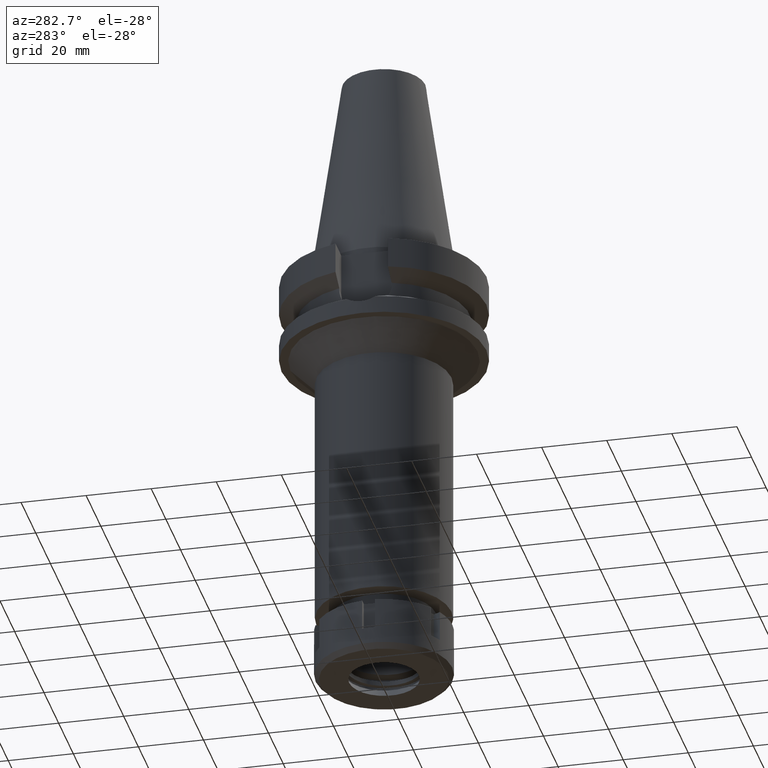
[diagram: clean part render]
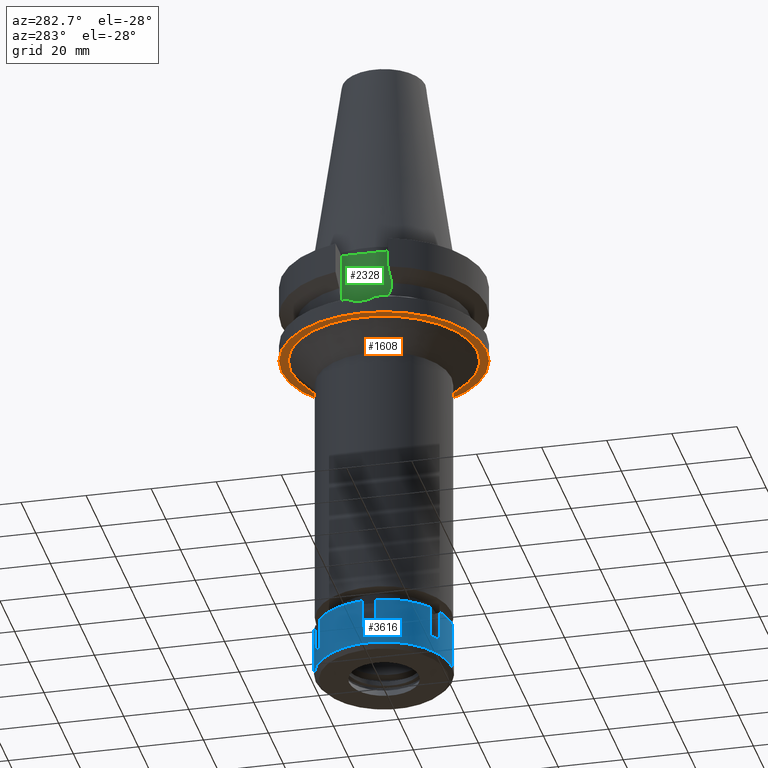
[diagram: same view with three faces highlighted in distinct colors, each labeled with its STEP entity id]
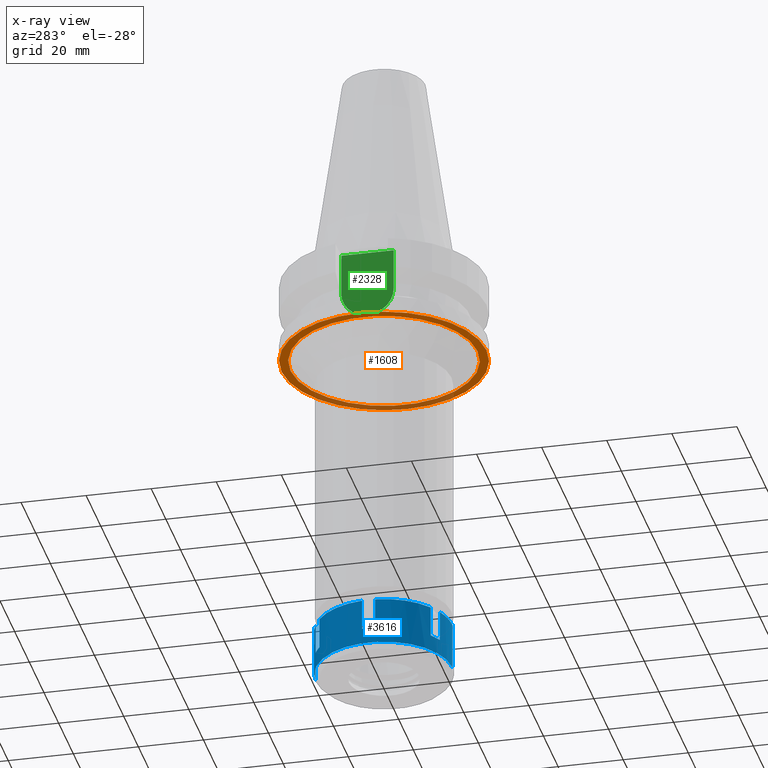
[diagram: x-ray of the same camera — body ghosted, the three highlighted faces saturated]
A machine part, auxiliary view with three faces highlighted in distinct colors.
The next image is the same camera in x-ray (body ghosted, the three faces saturated) — at least one of them is partly hidden behind the body in this view.
Their STEP definitions:

[orange] entity #1608 — the highlighted planar face has unit normal (0, 0, -1).
#24 = CARTESIAN_POINT ( 'NONE',  ( 0.0000000000000000000, 2.143376827867999896E-14, -27.00000000000000000 ) ) ;
#64 = CARTESIAN_POINT ( 'NONE',  ( 0.0000000000000000000, 0.0000000000000000000, -27.00000000000000000 ) ) ;
#93 = DIRECTION ( 'NONE',  ( 0.0000000000000000000, 0.0000000000000000000, -1.000000000000000000 ) ) ;
#149 = VERTEX_POINT ( 'NONE', #1038 ) ;
#159 = CIRCLE ( 'NONE', #1456, 31.50000000000000000 ) ;
#274 = DIRECTION ( 'NONE',  ( 0.0000000000000000000, -1.000000000000000000, 0.0000000000000000000 ) ) ;
#646 = VERTEX_POINT ( 'NONE', #1660 ) ;
#872 = DIRECTION ( 'NONE',  ( 0.0000000000000000000, 0.0000000000000000000, 1.000000000000000000 ) ) ;
#937 = FACE_OUTER_BOUND ( 'NONE', #2844, .T. ) ;
#969 = ORIENTED_EDGE ( 'NONE', *, *, #2391, .F. ) ;
#1000 = CIRCLE ( 'NONE', #1173, 28.75000000000000000 ) ;
#1038 = CARTESIAN_POINT ( 'NONE',  ( 0.0000000000000000000, 28.75000000000000000, -27.00000000000000000 ) ) ;
#1084 = ORIENTED_EDGE ( 'NONE', *, *, #1457, .F. ) ;
#1173 = AXIS2_PLACEMENT_3D ( 'NONE', #3445, #93, #1196 ) ;
#1196 = DIRECTION ( 'NONE',  ( 0.0000000000000000000, -1.000000000000000000, 0.0000000000000000000 ) ) ;
#1199 = DIRECTION ( 'NONE',  ( 0.0000000000000000000, 0.0000000000000000000, -1.000000000000000000 ) ) ;
#1368 = DIRECTION ( 'NONE',  ( 0.0000000000000000000, 0.0000000000000000000, -1.000000000000000000 ) ) ;
#1411 = DIRECTION ( 'NONE',  ( 0.0000000000000000000, 1.000000000000000000, 0.0000000000000000000 ) ) ;
#1422 = CARTESIAN_POINT ( 'NONE',  ( 0.0000000000000000000, 31.50000000000000000, -27.00000000000000000 ) ) ;
#1456 = AXIS2_PLACEMENT_3D ( 'NONE', #24, #872, #274 ) ;
#1457 = EDGE_CURVE ( 'NONE', #149, #646, #3056, .T. ) ;
#1468 = AXIS2_PLACEMENT_3D ( 'NONE', #2281, #1368, #2784 ) ;
#1501 = FACE_BOUND ( 'NONE', #3070, .T. ) ;
#1608 = ADVANCED_FACE ( 'NONE', ( #937, #1501 ), #1808, .T. ) ;
#1660 = CARTESIAN_POINT ( 'NONE',  ( 0.0000000000000000000, -28.75000000000000000, -27.00000000000000000 ) ) ;
#1808 = PLANE ( 'NONE',  #3455 ) ;
#2047 = EDGE_CURVE ( 'NONE', #646, #149, #1000, .T. ) ;
#2213 = CARTESIAN_POINT ( 'NONE',  ( 0.0000000000000000000, -31.50000000000000000, -27.00000000000000000 ) ) ;
#2281 = CARTESIAN_POINT ( 'NONE',  ( 0.0000000000000000000, 0.0000000000000000000, -27.00000000000000000 ) ) ;
#2391 = EDGE_CURVE ( 'NONE', #3151, #3040, #3340, .T. ) ;
#2616 = ORIENTED_EDGE ( 'NONE', *, *, #3429, .F. ) ;
#2647 = ORIENTED_EDGE ( 'NONE', *, *, #2047, .F. ) ;
#2777 = DIRECTION ( 'NONE',  ( 0.0000000000000000000, 0.0000000000000000000, 1.000000000000000000 ) ) ;
#2784 = DIRECTION ( 'NONE',  ( 0.0000000000000000000, 1.000000000000000000, 0.0000000000000000000 ) ) ;
#2844 = EDGE_LOOP ( 'NONE', ( #969, #2616 ) ) ;
#2884 = DIRECTION ( 'NONE',  ( 0.0000000000000000000, -1.000000000000000000, 0.0000000000000000000 ) ) ;
#3040 = VERTEX_POINT ( 'NONE', #2213 ) ;
#3041 = CARTESIAN_POINT ( 'NONE',  ( 0.0000000000000000000, 2.143376827867999896E-14, -27.00000000000000000 ) ) ;
#3056 = CIRCLE ( 'NONE', #1468, 28.75000000000000000 ) ;
#3070 = EDGE_LOOP ( 'NONE', ( #1084, #2647 ) ) ;
#3151 = VERTEX_POINT ( 'NONE', #1422 ) ;
#3340 = CIRCLE ( 'NONE', #3511, 31.50000000000000000 ) ;
#3429 = EDGE_CURVE ( 'NONE', #3040, #3151, #159, .T. ) ;
#3445 = CARTESIAN_POINT ( 'NONE',  ( 0.0000000000000000000, 0.0000000000000000000, -27.00000000000000000 ) ) ;
#3455 = AXIS2_PLACEMENT_3D ( 'NONE', #64, #1199, #2884 ) ;
#3511 = AXIS2_PLACEMENT_3D ( 'NONE', #3041, #2777, #1411 ) ;

[blue] entity #3616 — the highlighted cylindrical surface (partial cylindrical patch) has radius 21 mm, axis along (0, 0, -1).
#43 = EDGE_CURVE ( 'NONE', #3589, #1477, #738, .T. ) ;
#70 = EDGE_CURVE ( 'NONE', #2949, #2815, #2122, .T. ) ;
#72 = CARTESIAN_POINT ( 'NONE',  ( -12.18432328774999895, 17.10386699022999935, 0.0000000000000000000 ) ) ;
#73 = LINE ( 'NONE', #2910, #2234 ) ;
#102 = CARTESIAN_POINT ( 'NONE',  ( 0.0000000000000000000, -21.00000000000000000, 0.0000000000000000000 ) ) ;
#138 = DIRECTION ( 'NONE',  ( 0.0000000000000000000, 0.0000000000000000000, -1.000000000000000000 ) ) ;
#144 = CARTESIAN_POINT ( 'NONE',  ( 0.0000000000000000000, 0.0000000000000000000, -9.500000000000000000 ) ) ;
#150 = LINE ( 'NONE', #2403, #422 ) ;
#158 = DIRECTION ( 'NONE',  ( -0.5802058708453158298, 0.8144698566777217597, 0.0000000000000000000 ) ) ;
#166 = AXIS2_PLACEMENT_3D ( 'NONE', #3043, #245, #1566 ) ;
#185 = FACE_OUTER_BOUND ( 'NONE', #1439, .T. ) ;
#245 = DIRECTION ( 'NONE',  ( 0.0000000000000000000, 0.0000000000000000000, -1.000000000000000000 ) ) ;
#264 = DIRECTION ( 'NONE',  ( -0.9954545219222313834, 0.09523809523810303213, 0.0000000000000000000 ) ) ;
#275 = CARTESIAN_POINT ( 'NONE',  ( -8.720221672615000585, 19.10386699022999935, 0.0000000000000000000 ) ) ;
#330 = CARTESIAN_POINT ( 'NONE',  ( -8.720221672615998898, -19.10386699022999935, 0.0000000000000000000 ) ) ;
#398 = EDGE_CURVE ( 'NONE', #3247, #483, #2627, .T. ) ;
#410 = CIRCLE ( 'NONE', #3284, 20.99999999999999289 ) ;
#412 = DIRECTION ( 'NONE',  ( 0.0000000000000000000, 0.0000000000000000000, -1.000000000000000000 ) ) ;
#422 = VECTOR ( 'NONE', #3257, 1000.000000000000000 ) ;
#454 = DIRECTION ( 'NONE',  ( 0.0000000000000000000, 0.0000000000000000000, -1.000000000000000000 ) ) ;
#456 = DIRECTION ( 'NONE',  ( -0.9954545219222313834, -0.09523809523810303213, 0.0000000000000000000 ) ) ;
#479 = CIRCLE ( 'NONE', #1243, 20.99999999999999289 ) ;
#483 = VERTEX_POINT ( 'NONE', #72 ) ;
#501 = CYLINDRICAL_SURFACE ( 'NONE', #529, 21.00000000000000000 ) ;
#529 = AXIS2_PLACEMENT_3D ( 'NONE', #3010, #2721, #2734 ) ;
#543 = ORIENTED_EDGE ( 'NONE', *, *, #2882, .F. ) ;
#562 = EDGE_CURVE ( 'NONE', #2748, #1606, #479, .T. ) ;
#578 = EDGE_CURVE ( 'NONE', #2651, #1477, #1001, .T. ) ;
#682 = ORIENTED_EDGE ( 'NONE', *, *, #2322, .F. ) ;
#692 = CARTESIAN_POINT ( 'NONE',  ( -20.90454496036999998, 2.000000000000000000, -9.500000000000000000 ) ) ;
#711 = ORIENTED_EDGE ( 'NONE', *, *, #1035, .T. ) ;
#738 = LINE ( 'NONE', #1931, #2405 ) ;
#739 = DIRECTION ( 'NONE',  ( 0.0000000000000000000, 0.0000000000000000000, -1.000000000000000000 ) ) ;
#776 = CARTESIAN_POINT ( 'NONE',  ( 0.0000000000000000000, 0.0000000000000000000, -9.500000000000000000 ) ) ;
#780 = CARTESIAN_POINT ( 'NONE',  ( -8.720221672615000585, -19.10386699022999935, -9.500000000000000000 ) ) ;
#804 = DIRECTION ( 'NONE',  ( -0.5802058708454290725, -0.8144698566776411575, 0.0000000000000000000 ) ) ;
#813 = LINE ( 'NONE', #780, #1696 ) ;
#843 = EDGE_CURVE ( 'NONE', #3381, #1606, #73, .T. ) ;
#963 = CARTESIAN_POINT ( 'NONE',  ( 0.0000000000000000000, 0.0000000000000000000, -14.50000000000000000 ) ) ;
#974 = CARTESIAN_POINT ( 'NONE',  ( -12.18432328774999895, 17.10386699022999935, -9.500000000000000000 ) ) ;
#988 = DIRECTION ( 'NONE',  ( 0.0000000000000000000, -1.000000000000000000, 0.0000000000000000000 ) ) ;
#1001 = CIRCLE ( 'NONE', #2526, 21.00000000000000711 ) ;
#1029 = VERTEX_POINT ( 'NONE', #102 ) ;
#1035 = EDGE_CURVE ( 'NONE', #2815, #1335, #1219, .T. ) ;
#1138 = ORIENTED_EDGE ( 'NONE', *, *, #43, .F. ) ;
#1150 = EDGE_CURVE ( 'NONE', #1335, #1918, #2696, .T. ) ;
#1151 = EDGE_CURVE ( 'NONE', #2949, #2514, #3438, .T. ) ;
#1200 = EDGE_CURVE ( 'NONE', #3247, #2514, #3178, .T. ) ;
#1205 = DIRECTION ( 'NONE',  ( 0.0000000000000000000, 1.000000000000000000, 0.0000000000000000000 ) ) ;
#1219 = LINE ( 'NONE', #2890, #1595 ) ;
#1221 = CARTESIAN_POINT ( 'NONE',  ( -12.18432328774999895, 17.10386699022999935, -9.500000000000000000 ) ) ;
#1243 = AXIS2_PLACEMENT_3D ( 'NONE', #144, #2967, #456 ) ;
#1279 = CARTESIAN_POINT ( 'NONE',  ( 0.0000000000000000000, 0.0000000000000000000, 0.0000000000000000000 ) ) ;
#1308 = DIRECTION ( 'NONE',  ( 0.0000000000000000000, 0.0000000000000000000, -1.000000000000000000 ) ) ;
#1335 = VERTEX_POINT ( 'NONE', #2264 ) ;
#1365 = VECTOR ( 'NONE', #739, 1000.000000000000000 ) ;
#1376 = CARTESIAN_POINT ( 'NONE',  ( 0.0000000000000000000, 0.0000000000000000000, 0.0000000000000000000 ) ) ;
#1439 = EDGE_LOOP ( 'NONE', ( #3165, #1760, #711, #2194, #682, #2081, #543, #2708, #1138, #1956, #1594, #3259, #3121, #3205, #3275, #3092 ) ) ;
#1459 = VECTOR ( 'NONE', #3079, 1000.000000000000000 ) ;
#1477 = VERTEX_POINT ( 'NONE', #2534 ) ;
#1566 = DIRECTION ( 'NONE',  ( -0.4152486510768949035, 0.9097079519157886818, 0.0000000000000000000 ) ) ;
#1567 = CARTESIAN_POINT ( 'NONE',  ( 0.0000000000000000000, 0.0000000000000000000, -9.500000000000000000 ) ) ;
#1587 = VERTEX_POINT ( 'NONE', #330 ) ;
#1594 = ORIENTED_EDGE ( 'NONE', *, *, #2277, .F. ) ;
#1595 = VECTOR ( 'NONE', #412, 1000.000000000000000 ) ;
#1606 = VERTEX_POINT ( 'NONE', #692 ) ;
#1653 = CARTESIAN_POINT ( 'NONE',  ( 0.0000000000000000000, 0.0000000000000000000, 0.0000000000000000000 ) ) ;
#1684 = CARTESIAN_POINT ( 'NONE',  ( -20.90454496036999998, -2.000000000000000000, 0.0000000000000000000 ) ) ;
#1688 = LINE ( 'NONE', #2759, #1459 ) ;
#1696 = VECTOR ( 'NONE', #2720, 1000.000000000000000 ) ;
#1744 = DIRECTION ( 'NONE',  ( 0.0000000000000000000, 0.0000000000000000000, 1.000000000000000000 ) ) ;
#1760 = ORIENTED_EDGE ( 'NONE', *, *, #70, .T. ) ;
#1819 = CARTESIAN_POINT ( 'NONE',  ( 0.0000000000000000000, 21.00000000000000000, 0.0000000000000000000 ) ) ;
#1845 = CARTESIAN_POINT ( 'NONE',  ( -20.90454496036999998, -2.000000000000000000, -9.500000000000000000 ) ) ;
#1918 = VERTEX_POINT ( 'NONE', #3342 ) ;
#1931 = CARTESIAN_POINT ( 'NONE',  ( -12.18432328774999895, -17.10386699022999935, 0.0000000000000000000 ) ) ;
#1956 = ORIENTED_EDGE ( 'NONE', *, *, #2373, .T. ) ;
#1959 = DIRECTION ( 'NONE',  ( 0.0000000000000000000, 0.0000000000000000000, -1.000000000000000000 ) ) ;
#2016 = AXIS2_PLACEMENT_3D ( 'NONE', #963, #2594, #1205 ) ;
#2062 = CARTESIAN_POINT ( 'NONE',  ( -8.720221672615000585, 19.10386699022999935, -9.500000000000000000 ) ) ;
#2081 = ORIENTED_EDGE ( 'NONE', *, *, #3271, .T. ) ;
#2122 = CIRCLE ( 'NONE', #166, 21.00000000000000711 ) ;
#2194 = ORIENTED_EDGE ( 'NONE', *, *, #1150, .T. ) ;
#2217 = CIRCLE ( 'NONE', #2565, 21.00000000000000000 ) ;
#2234 = VECTOR ( 'NONE', #3430, 1000.000000000000000 ) ;
#2259 = DIRECTION ( 'NONE',  ( 0.0000000000000000000, 0.0000000000000000000, -1.000000000000000000 ) ) ;
#2264 = CARTESIAN_POINT ( 'NONE',  ( 0.0000000000000000000, 21.00000000000000000, -14.50000000000000000 ) ) ;
#2277 = EDGE_CURVE ( 'NONE', #2748, #2888, #150, .T. ) ;
#2322 = EDGE_CURVE ( 'NONE', #1029, #1918, #1688, .T. ) ;
#2358 = AXIS2_PLACEMENT_3D ( 'NONE', #1567, #454, #158 ) ;
#2373 = EDGE_CURVE ( 'NONE', #3589, #2888, #3166, .T. ) ;
#2403 = CARTESIAN_POINT ( 'NONE',  ( -20.90454496036999998, -2.000000000000000000, -9.500000000000000000 ) ) ;
#2405 = VECTOR ( 'NONE', #1959, 1000.000000000000000 ) ;
#2434 = EDGE_CURVE ( 'NONE', #3381, #483, #410, .T. ) ;
#2512 = AXIS2_PLACEMENT_3D ( 'NONE', #1376, #3591, #804 ) ;
#2514 = VERTEX_POINT ( 'NONE', #2062 ) ;
#2521 = VECTOR ( 'NONE', #1744, 1000.000000000000000 ) ;
#2526 = AXIS2_PLACEMENT_3D ( 'NONE', #776, #1308, #2787 ) ;
#2534 = CARTESIAN_POINT ( 'NONE',  ( -12.18432328774999895, -17.10386699022999935, -9.500000000000000000 ) ) ;
#2565 = AXIS2_PLACEMENT_3D ( 'NONE', #1279, #138, #988 ) ;
#2594 = DIRECTION ( 'NONE',  ( 0.0000000000000000000, 0.0000000000000000000, 1.000000000000000000 ) ) ;
#2627 = LINE ( 'NONE', #1221, #2521 ) ;
#2651 = VERTEX_POINT ( 'NONE', #2819 ) ;
#2696 = CIRCLE ( 'NONE', #2016, 21.00000000000000000 ) ;
#2708 = ORIENTED_EDGE ( 'NONE', *, *, #578, .T. ) ;
#2713 = CARTESIAN_POINT ( 'NONE',  ( -8.720221672615000585, 19.10386699022999935, 0.0000000000000000000 ) ) ;
#2720 = DIRECTION ( 'NONE',  ( 0.0000000000000000000, 0.0000000000000000000, 1.000000000000000000 ) ) ;
#2721 = DIRECTION ( 'NONE',  ( 0.0000000000000000000, 0.0000000000000000000, -1.000000000000000000 ) ) ;
#2734 = DIRECTION ( 'NONE',  ( 0.0000000000000000000, -1.000000000000000000, 0.0000000000000000000 ) ) ;
#2748 = VERTEX_POINT ( 'NONE', #1845 ) ;
#2759 = CARTESIAN_POINT ( 'NONE',  ( 0.0000000000000000000, -21.00000000000000000, 0.0000000000000000000 ) ) ;
#2773 = CARTESIAN_POINT ( 'NONE',  ( -20.90454496036999998, 2.000000000000000000, 0.0000000000000000000 ) ) ;
#2787 = DIRECTION ( 'NONE',  ( -0.4152486510768949035, -0.9097079519157886818, 0.0000000000000000000 ) ) ;
#2815 = VERTEX_POINT ( 'NONE', #1819 ) ;
#2819 = CARTESIAN_POINT ( 'NONE',  ( -8.720221672615998898, -19.10386699022999935, -9.500000000000000000 ) ) ;
#2882 = EDGE_CURVE ( 'NONE', #2651, #1587, #813, .T. ) ;
#2888 = VERTEX_POINT ( 'NONE', #1684 ) ;
#2890 = CARTESIAN_POINT ( 'NONE',  ( 0.0000000000000000000, 21.00000000000000000, 0.0000000000000000000 ) ) ;
#2910 = CARTESIAN_POINT ( 'NONE',  ( -20.90454496036999998, 2.000000000000000000, 0.0000000000000000000 ) ) ;
#2949 = VERTEX_POINT ( 'NONE', #275 ) ;
#2967 = DIRECTION ( 'NONE',  ( 0.0000000000000000000, 0.0000000000000000000, -1.000000000000000000 ) ) ;
#3010 = CARTESIAN_POINT ( 'NONE',  ( 0.0000000000000000000, 0.0000000000000000000, 0.0000000000000000000 ) ) ;
#3043 = CARTESIAN_POINT ( 'NONE',  ( 0.0000000000000000000, 0.0000000000000000000, 0.0000000000000000000 ) ) ;
#3079 = DIRECTION ( 'NONE',  ( 0.0000000000000000000, 0.0000000000000000000, -1.000000000000000000 ) ) ;
#3092 = ORIENTED_EDGE ( 'NONE', *, *, #1200, .T. ) ;
#3121 = ORIENTED_EDGE ( 'NONE', *, *, #843, .F. ) ;
#3165 = ORIENTED_EDGE ( 'NONE', *, *, #1151, .F. ) ;
#3166 = CIRCLE ( 'NONE', #2512, 20.99999999999999645 ) ;
#3178 = CIRCLE ( 'NONE', #2358, 21.00000000000000711 ) ;
#3205 = ORIENTED_EDGE ( 'NONE', *, *, #2434, .T. ) ;
#3247 = VERTEX_POINT ( 'NONE', #974 ) ;
#3257 = DIRECTION ( 'NONE',  ( 0.0000000000000000000, 0.0000000000000000000, 1.000000000000000000 ) ) ;
#3259 = ORIENTED_EDGE ( 'NONE', *, *, #562, .T. ) ;
#3271 = EDGE_CURVE ( 'NONE', #1029, #1587, #2217, .T. ) ;
#3275 = ORIENTED_EDGE ( 'NONE', *, *, #398, .F. ) ;
#3284 = AXIS2_PLACEMENT_3D ( 'NONE', #1653, #2259, #264 ) ;
#3335 = CARTESIAN_POINT ( 'NONE',  ( -12.18432328774999895, -17.10386699022999935, 0.0000000000000000000 ) ) ;
#3342 = CARTESIAN_POINT ( 'NONE',  ( 0.0000000000000000000, -21.00000000000000000, -14.50000000000000000 ) ) ;
#3381 = VERTEX_POINT ( 'NONE', #2773 ) ;
#3430 = DIRECTION ( 'NONE',  ( 0.0000000000000000000, 0.0000000000000000000, -1.000000000000000000 ) ) ;
#3438 = LINE ( 'NONE', #2713, #1365 ) ;
#3589 = VERTEX_POINT ( 'NONE', #3335 ) ;
#3591 = DIRECTION ( 'NONE',  ( 0.0000000000000000000, 0.0000000000000000000, -1.000000000000000000 ) ) ;
#3616 = ADVANCED_FACE ( 'NONE', ( #185 ), #501, .T. ) ;

[green] entity #2328 — the highlighted planar face has unit normal (-1, 0, 0).
#121 = DIRECTION ( 'NONE',  ( 0.0000000000000000000, 0.0000000000000000000, 1.000000000000000000 ) ) ;
#279 = PLANE ( 'NONE',  #656 ) ;
#605 = ORIENTED_EDGE ( 'NONE', *, *, #3082, .F. ) ;
#656 = AXIS2_PLACEMENT_3D ( 'NONE', #1364, #1345, #862 ) ;
#839 = CIRCLE ( 'NONE', #947, 8.050000000000000711 ) ;
#862 = DIRECTION ( 'NONE',  ( 0.0000000000000000000, 0.0000000000000000000, 1.000000000000000000 ) ) ;
#947 = AXIS2_PLACEMENT_3D ( 'NONE', #1333, #1605, #2134 ) ;
#996 = LINE ( 'NONE', #1046, #1774 ) ;
#1045 = VECTOR ( 'NONE', #121, 1000.000000000000000 ) ;
#1046 = CARTESIAN_POINT ( 'NONE',  ( -22.50000000000000000, -8.050000000000000711, -2.000000000000000000 ) ) ;
#1176 = EDGE_CURVE ( 'NONE', #1469, #2736, #839, .T. ) ;
#1204 = EDGE_CURVE ( 'NONE', #1734, #1469, #996, .T. ) ;
#1223 = EDGE_CURVE ( 'NONE', #1734, #2480, #1856, .T. ) ;
#1276 = ORIENTED_EDGE ( 'NONE', *, *, #1176, .F. ) ;
#1333 = CARTESIAN_POINT ( 'NONE',  ( -22.50000000000000000, 1.807578675540999863E-14, -14.94999999999999929 ) ) ;
#1345 = DIRECTION ( 'NONE',  ( -1.000000000000000000, 0.0000000000000000000, 0.0000000000000000000 ) ) ;
#1364 = CARTESIAN_POINT ( 'NONE',  ( -22.50000000000000000, 2.173748068486999793E-14, 0.0000000000000000000 ) ) ;
#1469 = VERTEX_POINT ( 'NONE', #3105 ) ;
#1605 = DIRECTION ( 'NONE',  ( 1.000000000000000000, 0.0000000000000000000, 0.0000000000000000000 ) ) ;
#1734 = VERTEX_POINT ( 'NONE', #1881 ) ;
#1774 = VECTOR ( 'NONE', #2446, 1000.000000000000000 ) ;
#1856 = LINE ( 'NONE', #3262, #3637 ) ;
#1881 = CARTESIAN_POINT ( 'NONE',  ( -22.50000000000000000, -8.050000000000000711, -2.000000000000000000 ) ) ;
#1930 = FACE_OUTER_BOUND ( 'NONE', #2139, .T. ) ;
#2134 = DIRECTION ( 'NONE',  ( 0.0000000000000000000, -1.000000000000000000, 1.917893035551997704E-14 ) ) ;
#2139 = EDGE_LOOP ( 'NONE', ( #605, #1276, #2908, #2571 ) ) ;
#2328 = ADVANCED_FACE ( 'NONE', ( #1930 ), #279, .T. ) ;
#2446 = DIRECTION ( 'NONE',  ( 0.0000000000000000000, 0.0000000000000000000, -1.000000000000000000 ) ) ;
#2480 = VERTEX_POINT ( 'NONE', #3363 ) ;
#2571 = ORIENTED_EDGE ( 'NONE', *, *, #1223, .T. ) ;
#2642 = CARTESIAN_POINT ( 'NONE',  ( -22.50000000000000000, 8.050000000000000711, -14.94999999999999929 ) ) ;
#2736 = VERTEX_POINT ( 'NONE', #3252 ) ;
#2829 = LINE ( 'NONE', #2642, #1045 ) ;
#2908 = ORIENTED_EDGE ( 'NONE', *, *, #1204, .F. ) ;
#3017 = DIRECTION ( 'NONE',  ( 0.0000000000000000000, 1.000000000000000000, 0.0000000000000000000 ) ) ;
#3082 = EDGE_CURVE ( 'NONE', #2736, #2480, #2829, .T. ) ;
#3105 = CARTESIAN_POINT ( 'NONE',  ( -22.50000000000000000, -8.050000000000000711, -14.94999999999999929 ) ) ;
#3252 = CARTESIAN_POINT ( 'NONE',  ( -22.50000000000000000, 8.050000000000000711, -14.94999999999999929 ) ) ;
#3262 = CARTESIAN_POINT ( 'NONE',  ( -22.50000000000000000, -8.050000000000000711, -2.000000000000000000 ) ) ;
#3363 = CARTESIAN_POINT ( 'NONE',  ( -22.50000000000000000, 8.050000000000000711, -2.000000000000000000 ) ) ;
#3637 = VECTOR ( 'NONE', #3017, 1000.000000000000000 ) ;